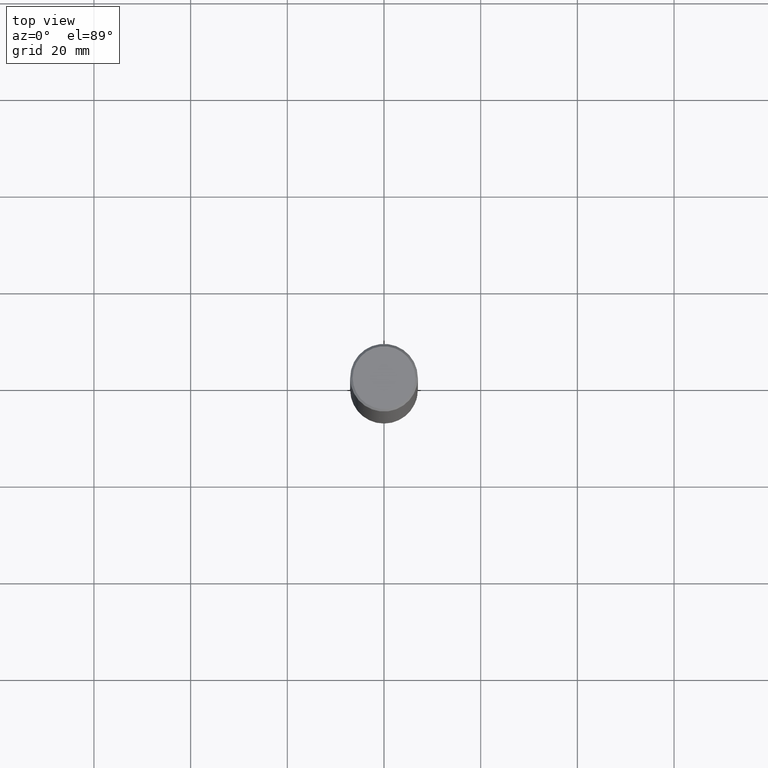
[diagram: clean part render]
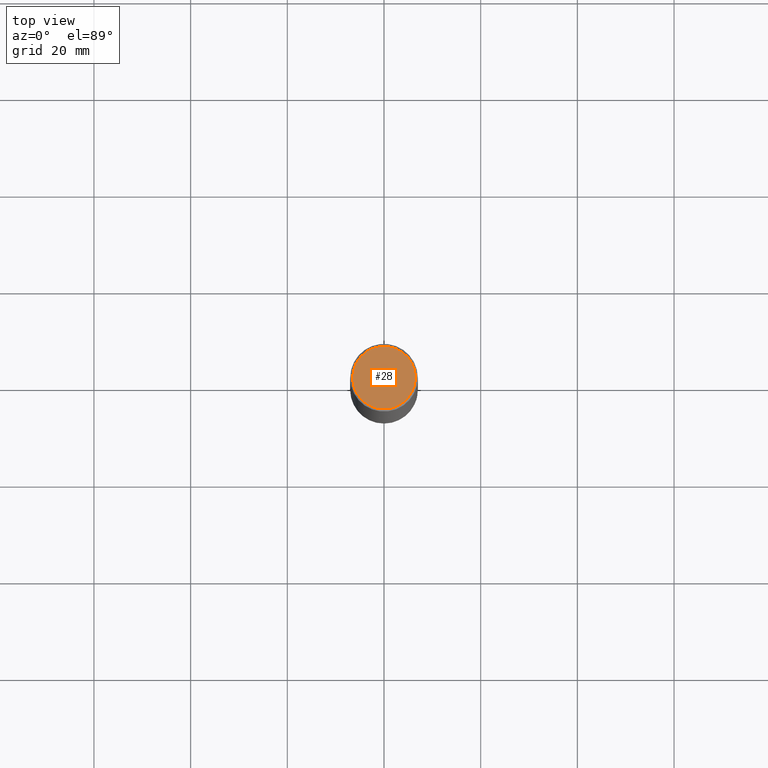
[diagram: same view with one face highlighted and labeled with its STEP entity id]
A machine part, top view. The second image highlights one B-rep face of the part: STEP entity #28.
In plain terms, the highlighted planar face has unit normal (0, -0, -1).
Its self-contained STEP definition (entity closure, byte-faithful):
#24 = AXIS2_PLACEMENT_3D ( 'NONE', #242, #60, #248 ) ;
#28 = ADVANCED_FACE ( 'NONE', ( #179 ), #307, .F. ) ;
#44 = EDGE_CURVE ( 'NONE', #322, #50, #219, .T. ) ;
#50 = VERTEX_POINT ( 'NONE', #63 ) ;
#60 = DIRECTION ( 'NONE',  ( -2.445468806185136597E-29, 3.491481338843145583E-15, 1.000000000000000000 ) ) ;
#63 = CARTESIAN_POINT ( 'NONE',  ( 0.2556000000000001604, -1.857063081596551214E-15, -1.536664496436020733E-16 ) ) ;
#99 = AXIS2_PLACEMENT_3D ( 'NONE', #302, #407, #342 ) ;
#104 = CARTESIAN_POINT ( 'NONE',  ( -0.2556000000000001604, 1.819760073805041190E-15, -1.536664496436274155E-16 ) ) ;
#130 = ORIENTED_EDGE ( 'NONE', *, *, #212, .T. ) ;
#179 = FACE_OUTER_BOUND ( 'NONE', #402, .T. ) ;
#212 = EDGE_CURVE ( 'NONE', #50, #322, #220, .T. ) ;
#219 = CIRCLE ( 'NONE', #24, 0.2556000000000001604 ) ;
#220 = CIRCLE ( 'NONE', #373, 0.2556000000000001604 ) ;
#242 = CARTESIAN_POINT ( 'NONE',  ( 3.757865091606790961E-45, -5.365235413369609811E-31, -1.536664496436148184E-16 ) ) ;
#248 = DIRECTION ( 'NONE',  ( 1.000000000000000000, -6.982962677686265922E-15, 4.876943595080609932E-29 ) ) ;
#262 = DIRECTION ( 'NONE',  ( 1.000000000000000000, -6.982962677686265922E-15, 4.876943595080609932E-29 ) ) ;
#273 = DIRECTION ( 'NONE',  ( -2.445468806185136597E-29, 3.491481338843145583E-15, 1.000000000000000000 ) ) ;
#295 = ORIENTED_EDGE ( 'NONE', *, *, #44, .T. ) ;
#302 = CARTESIAN_POINT ( 'NONE',  ( 1.784845260416610724E-15, 0.2556000000000001604, -9.692558550301160007E-16 ) ) ;
#307 = PLANE ( 'NONE',  #99 ) ;
#322 = VERTEX_POINT ( 'NONE', #104 ) ;
#324 = CARTESIAN_POINT ( 'NONE',  ( 3.757865091606790961E-45, -5.365235413369609811E-31, -1.536664496436148184E-16 ) ) ;
#342 = DIRECTION ( 'NONE',  ( -1.000000000000000000, 6.982962677686265922E-15, -4.876176775795935793E-29 ) ) ;
#373 = AXIS2_PLACEMENT_3D ( 'NONE', #324, #273, #262 ) ;
#402 = EDGE_LOOP ( 'NONE', ( #295, #130 ) ) ;
#407 = DIRECTION ( 'NONE',  ( 2.438088387897960049E-29, -3.491481338843145188E-15, -1.000000000000000000 ) ) ;